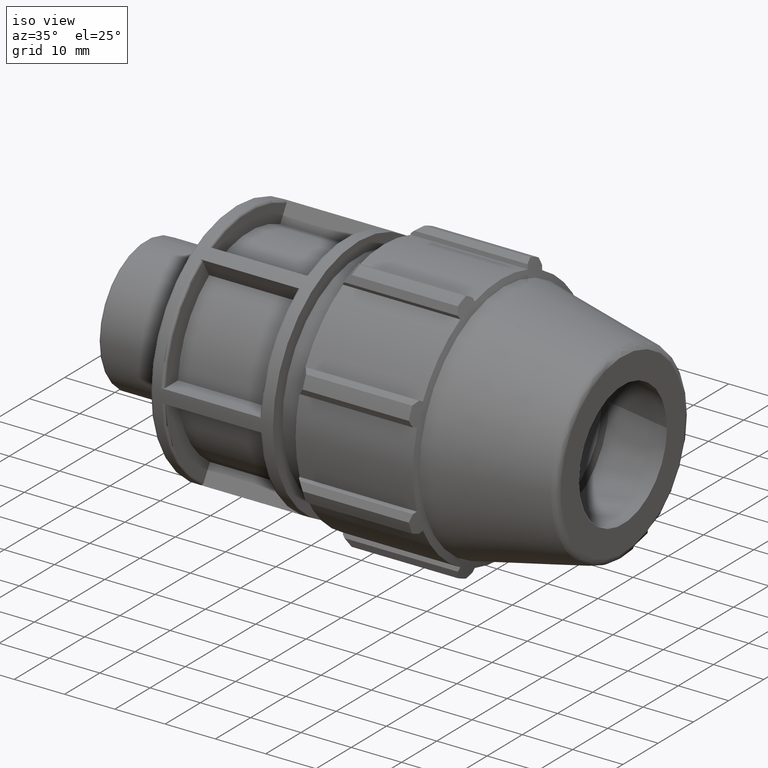
[diagram: clean part render]
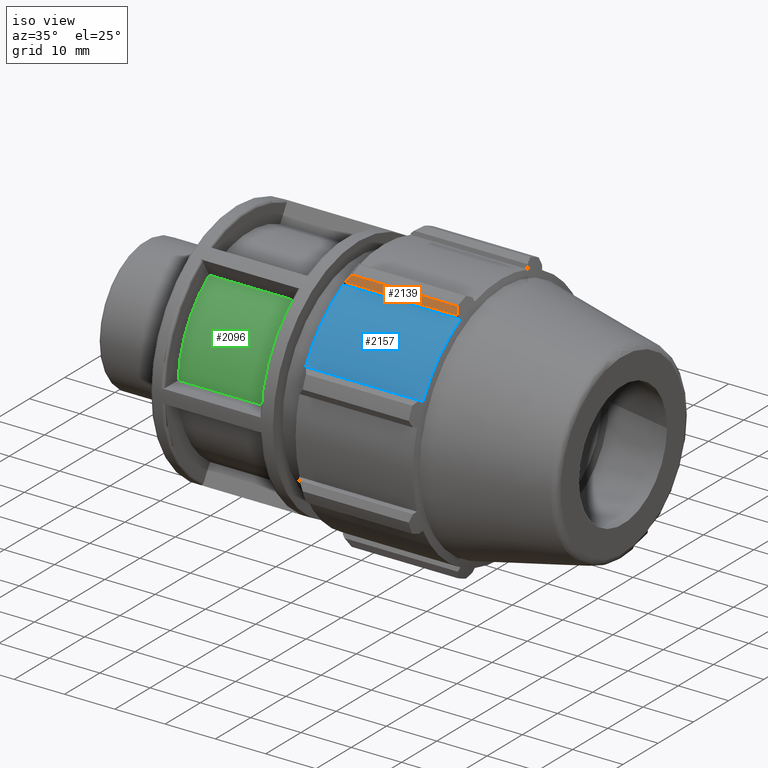
[diagram: same view with three faces highlighted in distinct colors, each labeled with its STEP entity id]
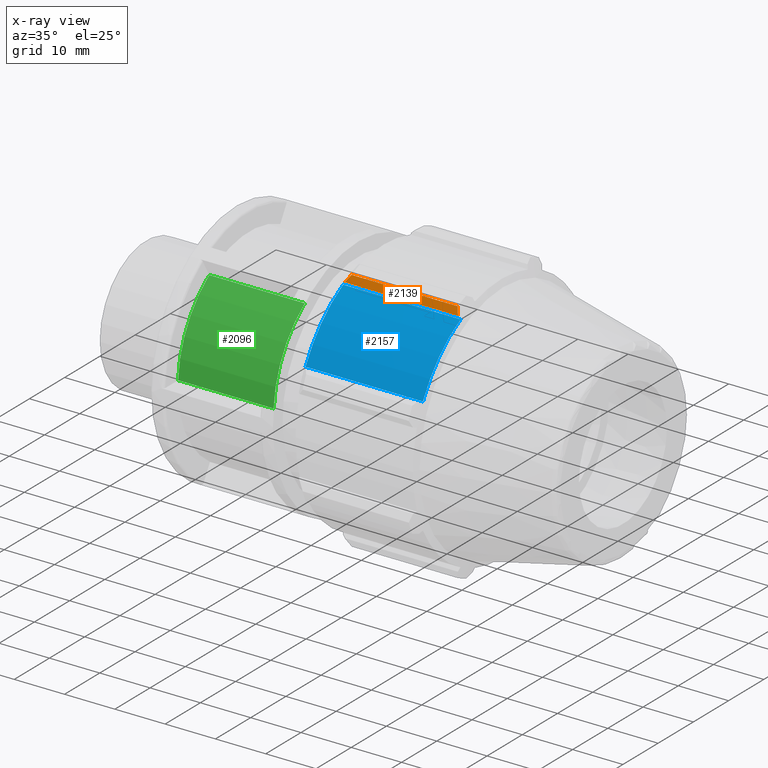
[diagram: x-ray of the same camera — body ghosted, the three highlighted faces saturated]
A machine part, iso view with three faces highlighted in distinct colors.
The next image is the same camera in x-ray (body ghosted, the three faces saturated) — at least one of them is partly hidden behind the body in this view.
Their STEP definitions:

[orange] entity #2139 — the highlighted planar face has unit normal (0, -0.9507, 0.3102).
#14=(
BOUNDED_CURVE()
B_SPLINE_CURVE(2,(#3410,#3411,#3412),.UNSPECIFIED.,.F.,.F.)
B_SPLINE_CURVE_WITH_KNOTS((3,3),(0.136727951356765,0.395611107784242),
 .UNSPECIFIED.)
CURVE()
GEOMETRIC_REPRESENTATION_ITEM()
RATIONAL_B_SPLINE_CURVE((1.00564709246153,1.01078116102921,1.01511210029178))
REPRESENTATION_ITEM('')
);
#41=(
BOUNDED_CURVE()
B_SPLINE_CURVE(2,(#3728,#3729,#3730),.UNSPECIFIED.,.F.,.F.)
B_SPLINE_CURVE_WITH_KNOTS((3,3),(0.333071412924044,0.481286957343877),
 .UNSPECIFIED.)
CURVE()
GEOMETRIC_REPRESENTATION_ITEM()
RATIONAL_B_SPLINE_CURVE((1.00183537378547,1.00132605415914,1.))
REPRESENTATION_ITEM('')
);
#191=LINE('',#3794,#335);
#192=LINE('',#3795,#336);
#335=VECTOR('',#2868,22.5205913474508);
#336=VECTOR('',#2869,21.0896780755192);
#449=PLANE('',#2347);
#569=FACE_OUTER_BOUND('',#704,.T.);
#704=EDGE_LOOP('',(#1797,#1798,#1799,#1800));
#917=VERTEX_POINT('',#3408);
#918=VERTEX_POINT('',#3409);
#1019=VERTEX_POINT('',#3725);
#1020=VERTEX_POINT('',#3727);
#1153=EDGE_CURVE('',#917,#918,#14,.T.);
#1285=EDGE_CURVE('',#1020,#1019,#41,.T.);
#1318=EDGE_CURVE('',#917,#1020,#191,.T.);
#1319=EDGE_CURVE('',#1019,#918,#192,.T.);
#1797=ORIENTED_EDGE('',*,*,#1153,.F.);
#1798=ORIENTED_EDGE('',*,*,#1318,.T.);
#1799=ORIENTED_EDGE('',*,*,#1285,.T.);
#1800=ORIENTED_EDGE('',*,*,#1319,.T.);
#2139=ADVANCED_FACE('',(#569),#449,.T.);
#2347=AXIS2_PLACEMENT_3D('',#3793,#2866,#2867);
#2866=DIRECTION('center_axis',(0.,-0.950662050564447,0.310228408783916));
#2867=DIRECTION('ref_axis',(0.,-0.310228408783916,-0.950662050564447));
#2868=DIRECTION('',(1.,0.,0.));
#2869=DIRECTION('',(-1.,0.,0.));
#3408=CARTESIAN_POINT('',(48.04,-11.9685240550521,22.9913207959795));
#3409=CARTESIAN_POINT('',(49.12,-11.4994587009708,24.428721816433));
#3410=CARTESIAN_POINT('Ctrl Pts',(48.04,-11.9685240550521,22.9913207959795));
#3411=CARTESIAN_POINT('Ctrl Pts',(48.5584000000001,-11.7387777591755,23.6953539488548));
#3412=CARTESIAN_POINT('Ctrl Pts',(49.12,-11.4994587009708,24.428721816433));
#3725=CARTESIAN_POINT('',(70.2096780755192,-11.4994587009708,24.428721816433));
#3727=CARTESIAN_POINT('',(70.5605913474508,-11.9685240550521,22.9913207959795));
#3728=CARTESIAN_POINT('Ctrl Pts',(70.5605913474508,-11.9685240550521,22.9913207959795));
#3729=CARTESIAN_POINT('Ctrl Pts',(70.3921529769236,-11.7387777591755,23.6953539488547));
#3730=CARTESIAN_POINT('Ctrl Pts',(70.2096780755192,-11.4994587009708,24.428721816433));
#3793=CARTESIAN_POINT('Origin',(58.8548390377596,-11.7339913780114,23.7100213062062));
#3794=CARTESIAN_POINT('',(58.8548390377596,-11.9685240550521,22.9913207959795));
#3795=CARTESIAN_POINT('',(58.8548390377596,-11.4994587009708,24.428721816433));

[blue] entity #2157 — the highlighted cylindrical surface (partial cylindrical patch) has radius 25.11 mm, axis along (1, 0, 0).
#130=LINE('',#3519,#274);
#193=LINE('',#3797,#337);
#274=VECTOR('',#2685,23.3237763013994);
#337=VECTOR('',#2872,23.3237763013994);
#384=CYLINDRICAL_SURFACE('',#2369,25.11);
#587=FACE_OUTER_BOUND('',#725,.T.);
#725=EDGE_LOOP('',(#1870,#1871,#1872,#1873));
#803=CIRCLE('',#2280,25.11);
#822=CIRCLE('',#2328,25.11);
#951=VERTEX_POINT('',#3481);
#952=VERTEX_POINT('',#3483);
#962=VERTEX_POINT('',#3517);
#1021=VERTEX_POINT('',#3731);
#1188=EDGE_CURVE('',#951,#952,#803,.T.);
#1203=EDGE_CURVE('',#951,#962,#130,.T.);
#1287=EDGE_CURVE('',#1021,#962,#822,.T.);
#1320=EDGE_CURVE('',#952,#1021,#193,.T.);
#1870=ORIENTED_EDGE('',*,*,#1287,.F.);
#1871=ORIENTED_EDGE('',*,*,#1320,.F.);
#1872=ORIENTED_EDGE('',*,*,#1188,.F.);
#1873=ORIENTED_EDGE('',*,*,#1203,.T.);
#2157=ADVANCED_FACE('',(#587),#384,.T.);
#2280=AXIS2_PLACEMENT_3D('',#3484,#2662,#2663);
#2328=AXIS2_PLACEMENT_3D('',#3733,#2812,#2813);
#2369=AXIS2_PLACEMENT_3D('',#3830,#2921,#2922);
#2662=DIRECTION('center_axis',(-1.,0.,0.));
#2663=DIRECTION('ref_axis',(0.,0.887010833178222,-0.461748613235034));
#2685=DIRECTION('',(1.,0.,0.));
#2812=DIRECTION('center_axis',(1.,0.,0.));
#2813=DIRECTION('ref_axis',(0.,0.887010833178222,-0.461748613235034));
#2872=DIRECTION('',(1.,0.,0.));
#2921=DIRECTION('center_axis',(1.,0.,0.));
#2922=DIRECTION('ref_axis',(0.,0.887010833178222,-0.461748613235034));
#3481=CARTESIAN_POINT('',(47.5,-22.2728420211051,11.5945076783317));
#3483=CARTESIAN_POINT('',(47.5,-11.5945076783317,22.2728420211051));
#3484=CARTESIAN_POINT('Origin',(47.5,0.,0.));
#3517=CARTESIAN_POINT('',(70.8237763013994,-22.2728420211051,11.5945076783317));
#3519=CARTESIAN_POINT('',(47.5,-22.2728420211051,11.5945076783317));
#3731=CARTESIAN_POINT('',(70.8237763013994,-11.5945076783317,22.2728420211051));
#3733=CARTESIAN_POINT('Origin',(70.8237763013994,0.,0.));
#3797=CARTESIAN_POINT('',(47.5,-11.5945076783317,22.2728420211051));
#3830=CARTESIAN_POINT('Origin',(47.5,0.,0.));

[green] entity #2096 — the highlighted cylindrical surface (partial cylindrical patch) has radius 20.25 mm, axis along (1, 0, 0).
#92=LINE('',#3368,#236);
#95=LINE('',#3373,#239);
#236=VECTOR('',#2555,19.);
#239=VECTOR('',#2560,19.);
#374=CYLINDRICAL_SURFACE('',#2257,20.25);
#526=FACE_OUTER_BOUND('',#655,.T.);
#655=EDGE_LOOP('',(#1530,#1531,#1532,#1533));
#775=CIRCLE('',#2223,20.25);
#783=CIRCLE('',#2250,20.25);
#894=VERTEX_POINT('',#3277);
#895=VERTEX_POINT('',#3279);
#910=VERTEX_POINT('',#3367);
#911=VERTEX_POINT('',#3371);
#1110=EDGE_CURVE('',#894,#895,#775,.T.);
#1135=EDGE_CURVE('',#910,#895,#92,.T.);
#1138=EDGE_CURVE('',#894,#911,#95,.T.);
#1148=EDGE_CURVE('',#911,#910,#783,.T.);
#1530=ORIENTED_EDGE('',*,*,#1135,.T.);
#1531=ORIENTED_EDGE('',*,*,#1110,.F.);
#1532=ORIENTED_EDGE('',*,*,#1138,.T.);
#1533=ORIENTED_EDGE('',*,*,#1148,.T.);
#2096=ADVANCED_FACE('',(#526),#374,.T.);
#2223=AXIS2_PLACEMENT_3D('',#3280,#2504,#2505);
#2250=AXIS2_PLACEMENT_3D('',#3393,#2584,#2585);
#2257=AXIS2_PLACEMENT_3D('',#3401,#2599,#2600);
#2504=DIRECTION('center_axis',(1.,0.,0.));
#2505=DIRECTION('ref_axis',(0.,0.,-1.));
#2555=DIRECTION('',(1.,0.,0.));
#2560=DIRECTION('',(-1.,0.,0.));
#2584=DIRECTION('center_axis',(1.,0.,0.));
#2585=DIRECTION('ref_axis',(0.,0.,-1.));
#2599=DIRECTION('center_axis',(1.,0.,0.));
#2600=DIRECTION('ref_axis',(0.,1.,0.));
#3277=CARTESIAN_POINT('',(39.7142857142857,-11.3772750920618,16.7517196573829));
#3279=CARTESIAN_POINT('',(39.7142857142857,-20.2130437212166,1.22285057312198));
#3280=CARTESIAN_POINT('Origin',(39.7142857142857,0.,0.));
#3367=CARTESIAN_POINT('',(20.7142857142857,-20.2130437212166,1.22285057312198));
#3368=CARTESIAN_POINT('',(30.2142857142857,-20.2130437212166,1.22285057312198));
#3371=CARTESIAN_POINT('',(20.7142857142857,-11.3772750920618,16.7517196573829));
#3373=CARTESIAN_POINT('',(30.2142857142857,-11.3772750920618,16.7517196573829));
#3393=CARTESIAN_POINT('Origin',(20.7142857142857,0.,0.));
#3401=CARTESIAN_POINT('Origin',(30.2142857142857,0.,0.));